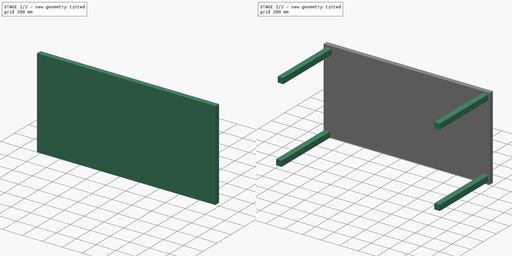
[diagram: build sequence overview — one tinted view per stage of 2, left to right]
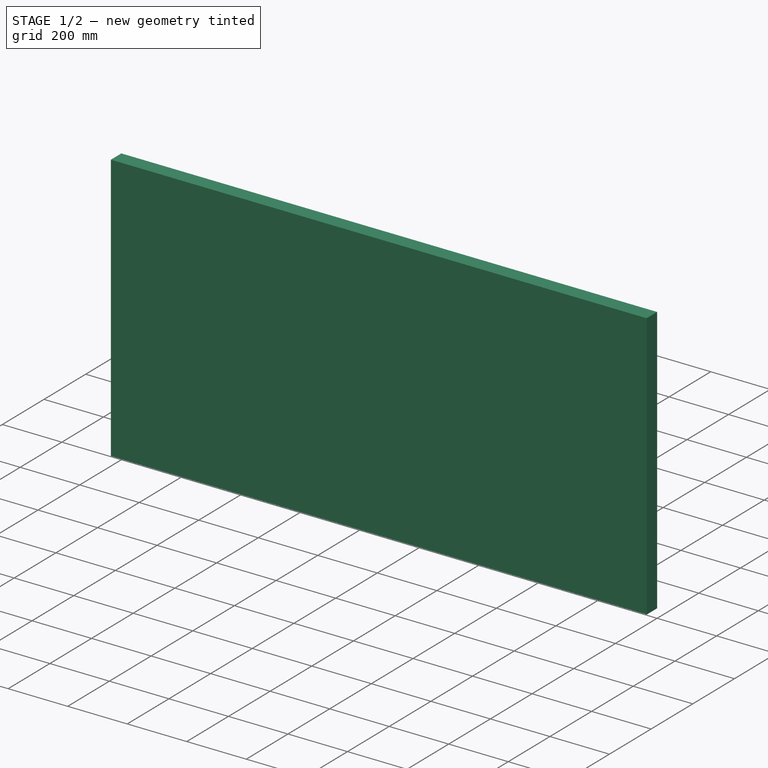
[diagram: stage 1 of 2 — iso view after this stage's code; geometry added in this stage tinted green]
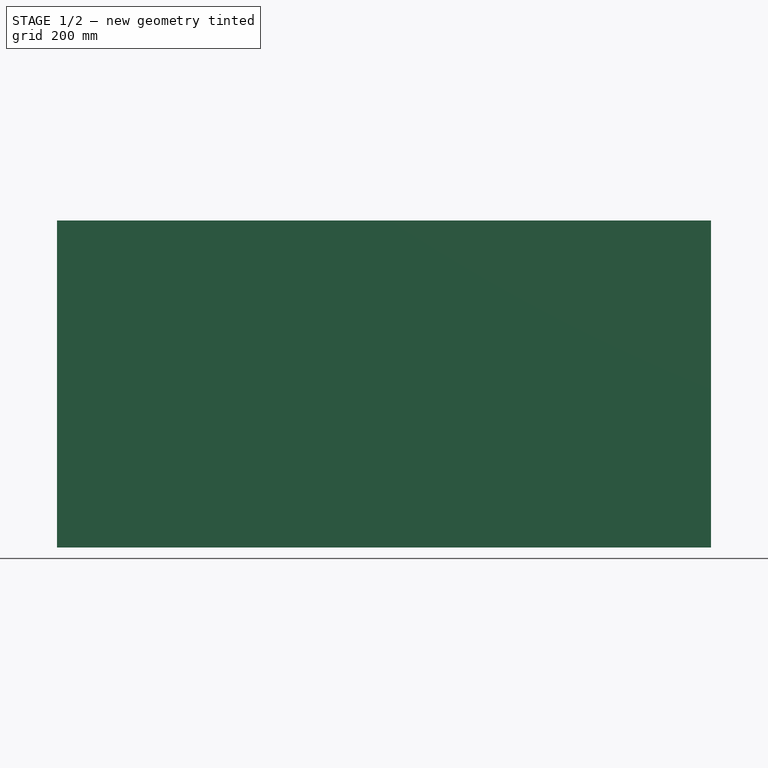
[diagram: stage 1 of 2 — front view after this stage's code; geometry added in this stage tinted green]
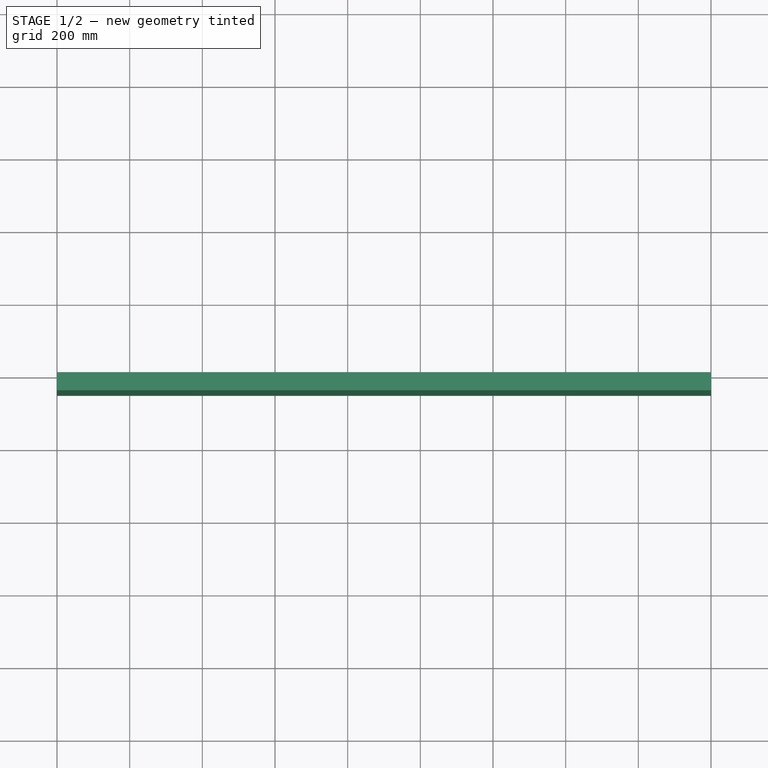
[diagram: stage 1 of 2 — top view after this stage's code; geometry added in this stage tinted green]
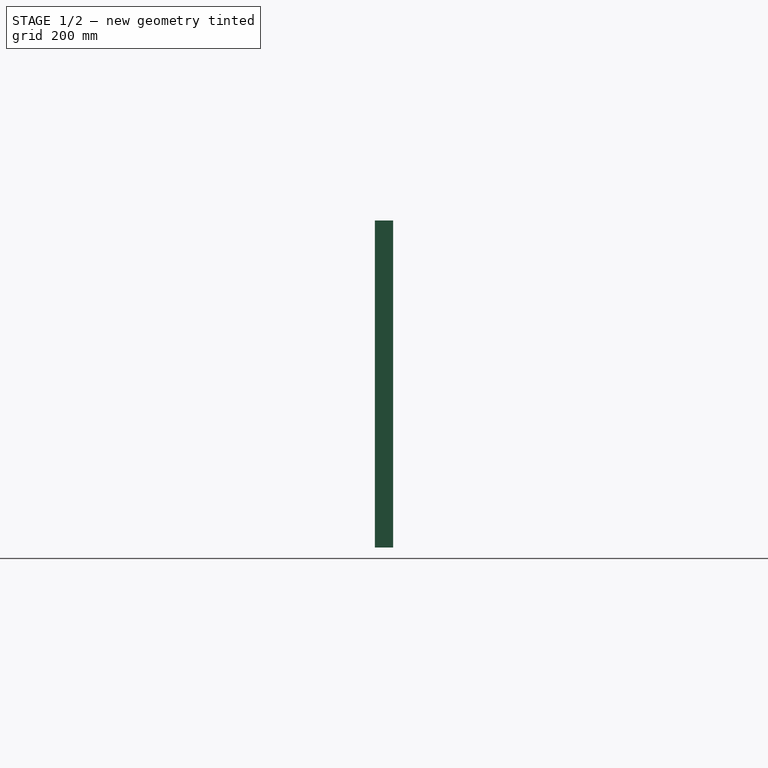
[diagram: stage 1 of 2 — right view after this stage's code; geometry added in this stage tinted green]
FCSTD DOCUMENT  (FreeCAD 1.0R39319 (Git))
Label: dining-table-6-seater
License: All rights reserved
LicenseURL: https://en.wikipedia.org/wiki/All_rights_reserved
objects: Sketcher::SketchObject×2, PartDesign::Pad×2, PartDesign::Body×1
note: 11 computed .brp shape members not serialized (recipe doc carries the construction recipe); baked Part::Feature solids carry a one-line shape summary decoded from their .brp

FEATURE [Sketcher::SketchObject] Sketch
  ArcFitTolerance = 1e-06
  AttachmentSupport = -> [XZ_Plane]
  FullyConstrained = true
  MakeInternals = false
  MapMode = 5
  Placement = pos=(0,0,0) rot=(1,0,0;1.5708rad)
  sketch-geometry (4):
    g0: LineSegment StartX=0 StartY=0 StartZ=0 EndX=1800 EndY=0 EndZ=0
    g1: LineSegment StartX=1800 StartY=0 StartZ=0 EndX=1800 EndY=900 EndZ=0
    g2: LineSegment StartX=1800 StartY=900 StartZ=0 EndX=0 EndY=900 EndZ=0
    g3: LineSegment StartX=0 StartY=900 StartZ=0 EndX=0 EndY=0 EndZ=0
  constraints (11):
    c: Coincident(g0,g1)
    c: Coincident(g1,g2)
    c: Coincident(g2,g3)
    c: Coincident(g3,g0)
    c: Horizontal(g0)
    c: Horizontal(g2)
    c: Vertical(g1)
    c: Vertical(g3)
    c: Distance(g1,g3) = 1800
    c: Distance(g0,g2) = 900
    c: Coincident(g0,g-1)
FEATURE [PartDesign::Pad] Pad
  Direction = (0,-1,2e-16)
  Length = 50
  Length2 = 10
  Placement = pos=(0,0,0) rot=(1,0,0;1.5708rad)
  Profile = -> Sketch
  ReferenceAxis = -> Sketch [N_Axis]
  Refine = true
  Suppressed = false
  Type = 0
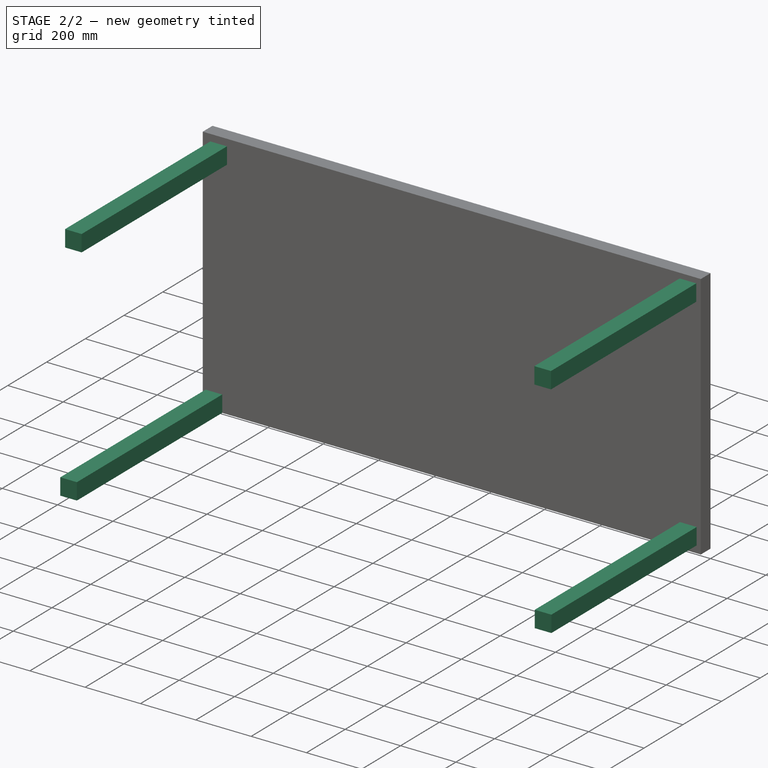
[diagram: stage 2 of 2 — iso view after this stage's code; geometry added in this stage tinted green]
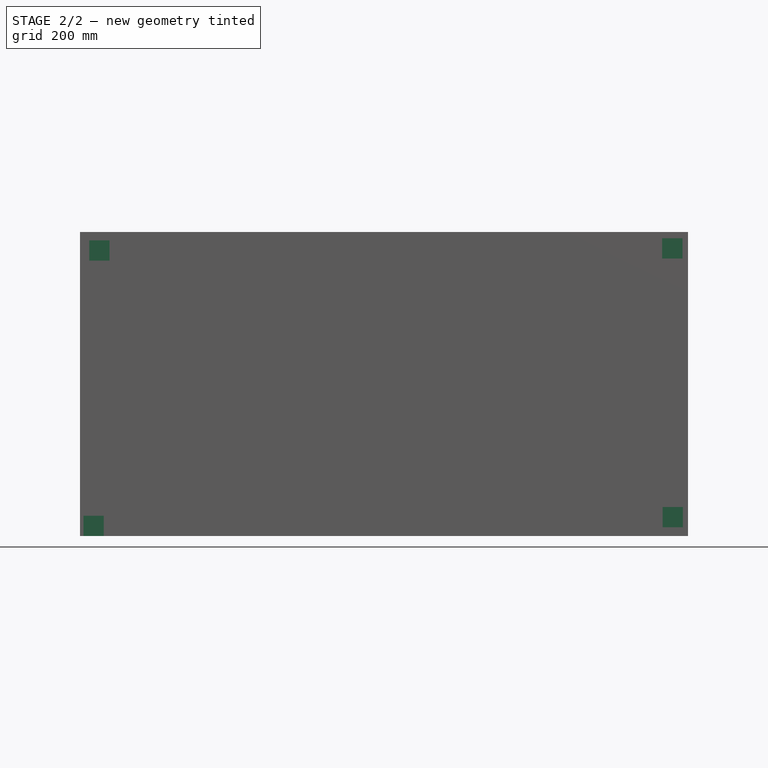
[diagram: stage 2 of 2 — front view after this stage's code; geometry added in this stage tinted green]
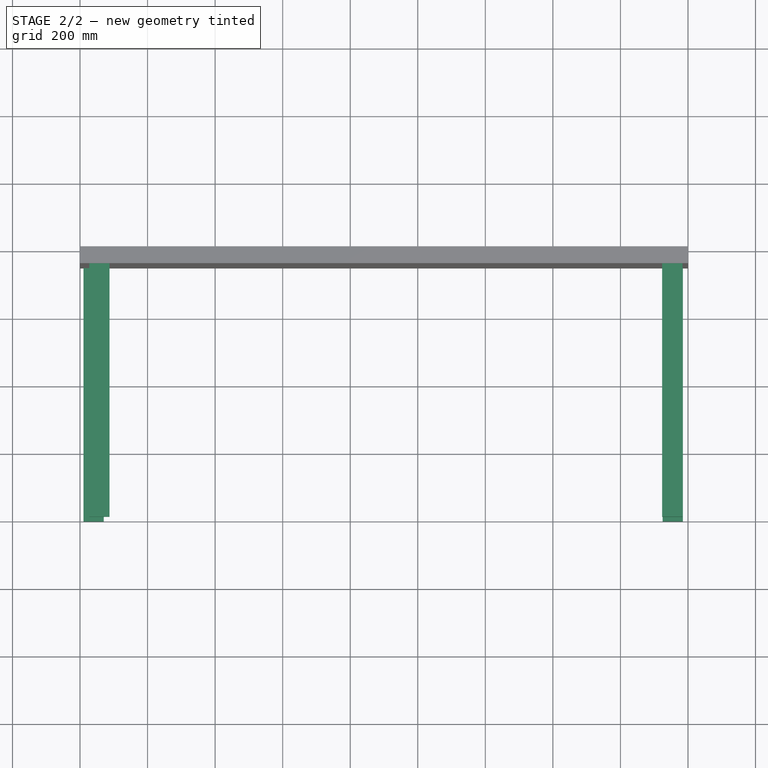
[diagram: stage 2 of 2 — top view after this stage's code; geometry added in this stage tinted green]
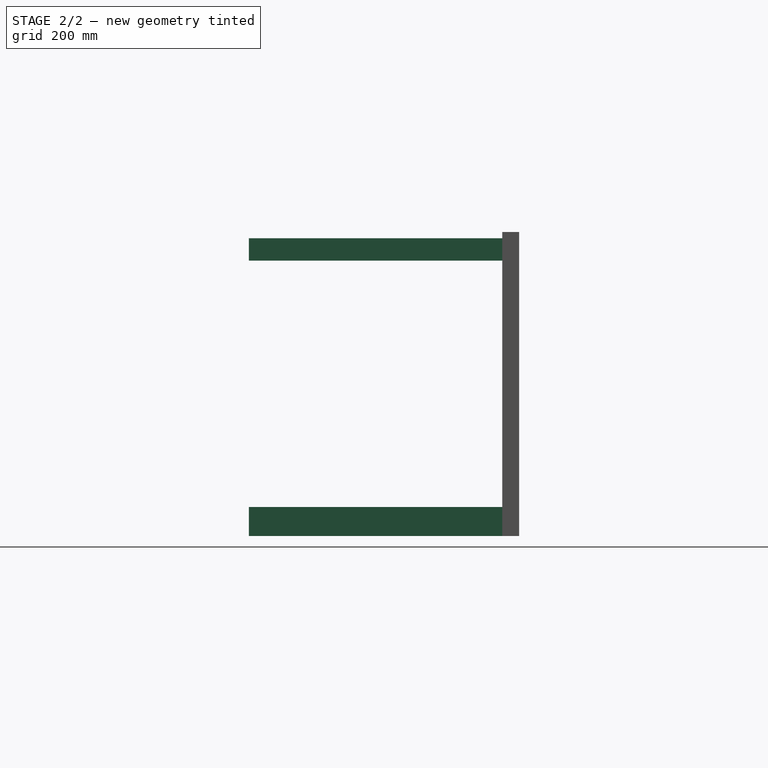
[diagram: stage 2 of 2 — right view after this stage's code; geometry added in this stage tinted green]
FEATURE [Sketcher::SketchObject] Sketch001
  ArcFitTolerance = 1e-06
  AttachmentSupport = -> [Pad]
  FullyConstrained = false
  MakeInternals = false
  MapMode = 5
  Placement = pos=(0,-50,0) rot=(1,0,0;1.5708rad)
  sketch-geometry (16):
    g0: LineSegment StartX=1785.02 StartY=25.8702 StartZ=0 EndX=1785.02 EndY=85.8702 EndZ=0
    g1: LineSegment StartX=1785.02 StartY=85.8702 StartZ=0 EndX=1725.02 EndY=85.8702 EndZ=0
    g2: LineSegment StartX=1725.02 StartY=85.8702 StartZ=0 EndX=1725.02 EndY=25.8702 EndZ=0
    g3: LineSegment StartX=1725.02 StartY=25.8702 StartZ=0 EndX=1785.02 EndY=25.8702 EndZ=0
    g4: LineSegment StartX=1783.63 StartY=881.471 StartZ=0 EndX=1723.63 EndY=881.471 EndZ=0
    g5: LineSegment StartX=1723.63 StartY=881.471 StartZ=0 EndX=1723.63 EndY=821.471 EndZ=0
    g6: LineSegment StartX=1723.63 StartY=821.471 StartZ=0 EndX=1783.63 EndY=821.471 EndZ=0
    g7: LineSegment StartX=1783.63 StartY=821.471 StartZ=0 EndX=1783.63 EndY=881.471 EndZ=0
    g8: LineSegment StartX=70.0929 StartY=60 StartZ=0 EndX=10.0929 EndY=60 EndZ=0
    g9: LineSegment StartX=10.0929 StartY=60 StartZ=0 EndX=10.0929 EndY=0 EndZ=0
    g10: LineSegment StartX=10.0929 StartY=0 StartZ=0 EndX=70.0929 EndY=0 EndZ=0
    g11: LineSegment StartX=70.0929 StartY=0 StartZ=0 EndX=70.0929 EndY=60 EndZ=0
    g12: LineSegment StartX=27.3244 StartY=875.379 StartZ=0 EndX=27.3244 EndY=815.379 EndZ=0
    g13: LineSegment StartX=27.3244 StartY=815.379 StartZ=0 EndX=87.3244 EndY=815.379 EndZ=0
    g14: LineSegment StartX=87.3244 StartY=815.379 StartZ=0 EndX=87.3244 EndY=875.379 EndZ=0
    g15: LineSegment StartX=87.3244 StartY=875.379 StartZ=0 EndX=27.3244 EndY=875.379 EndZ=0
  constraints (41):
    c: Coincident(g0,g1)
    c: Coincident(g1,g2)
    c: Coincident(g2,g3)
    c: Coincident(g3,g0)
    c: Vertical(g0)
    c: Vertical(g2)
    c: Horizontal(g1)
    c: Horizontal(g3)
    c: Distance(g0,g2) = 60
    c: Distance(g1,g3) = 60
    c: Coincident(g4,g5)
    c: Coincident(g5,g6)
    c: Coincident(g6,g7)
    c: Coincident(g7,g4)
    c: Horizontal(g4)
    c: Horizontal(g6)
    c: Vertical(g5)
    c: Vertical(g7)
    c: Distance(g5,g7) = 60
    c: Distance(g4,g6) = 60
    c: Coincident(g8,g9)
    c: Coincident(g9,g10)
    c: Coincident(g10,g11)
    c: Coincident(g11,g8)
    c: Horizontal(g8)
    c: Horizontal(g10)
    c: Vertical(g9)
    c: Vertical(g11)
    c: Distance(g9,g11) = 60
    c: Distance(g8,g10) = 60
    c: PointOnObject(g9,g-1)
    c: Coincident(g12,g13)
    c: Coincident(g13,g14)
    c: Coincident(g14,g15)
    c: Coincident(g15,g12)
    c: Vertical(g12)
    c: Vertical(g14)
    c: Horizontal(g13)
    c: Horizontal(g15)
    c: Distance(g12,g14) = 60
    c: Distance(g13,g15) = 60
FEATURE [PartDesign::Pad] Pad001
  BaseFeature = -> Pad
  Direction = (0,-1,2e-16)
  Length = 750
  Length2 = 10
  Placement = pos=(0,0,0) rot=(1,0,0;1.5708rad)
  Profile = -> Sketch001
  ReferenceAxis = -> Sketch001 [N_Axis]
  Refine = true
  Suppressed = false
  Type = 0
FEATURE [PartDesign::Body] Body
  AllowCompound = false
  Group = -> [Sketch,Pad,Sketch001,Pad001]
  Origin = -> Origin
  Tip = -> Pad001
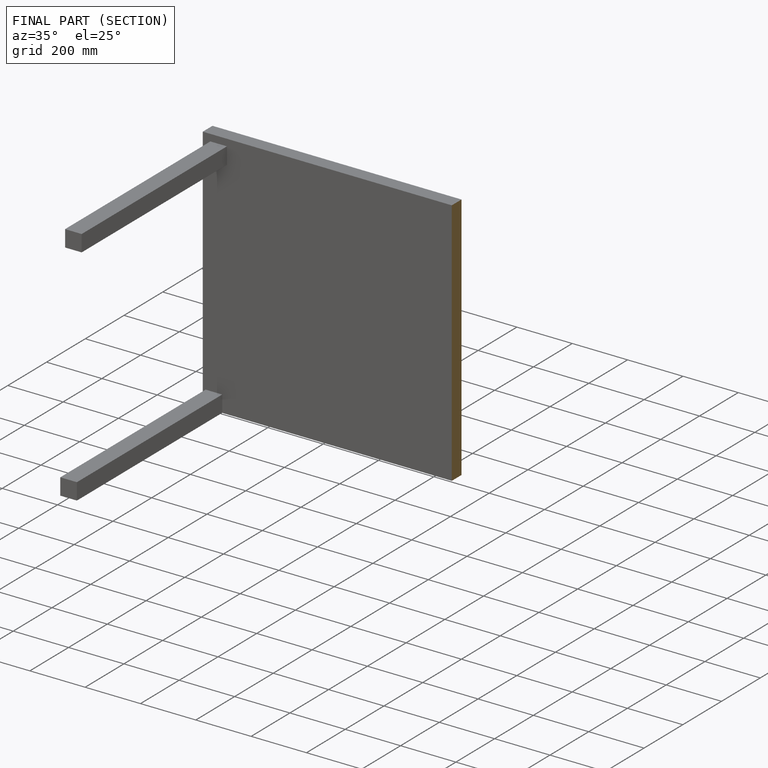
[diagram: finished part — half-section view (interior)]
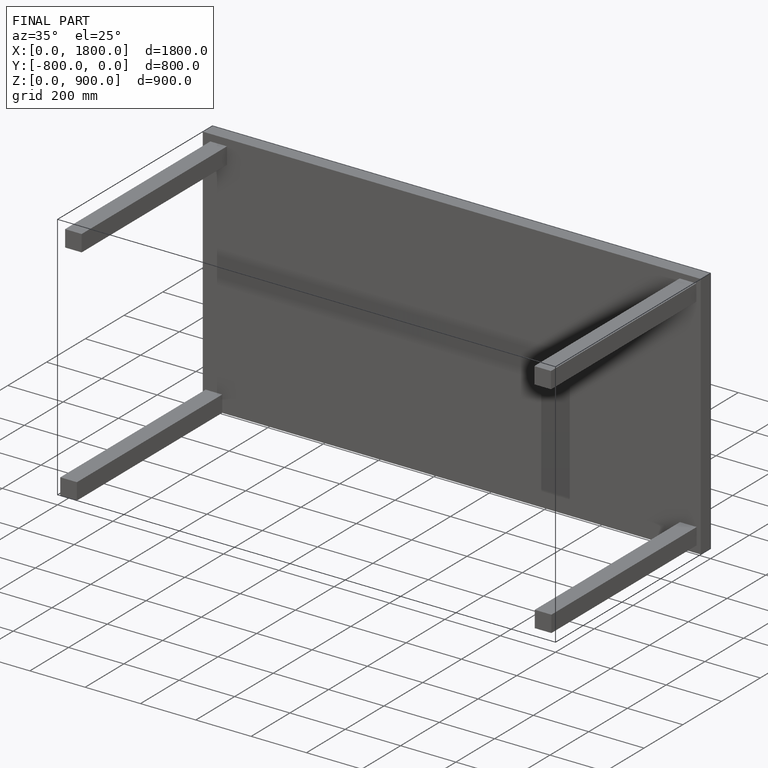
[diagram: finished part — iso view with bounding-box wireframe]
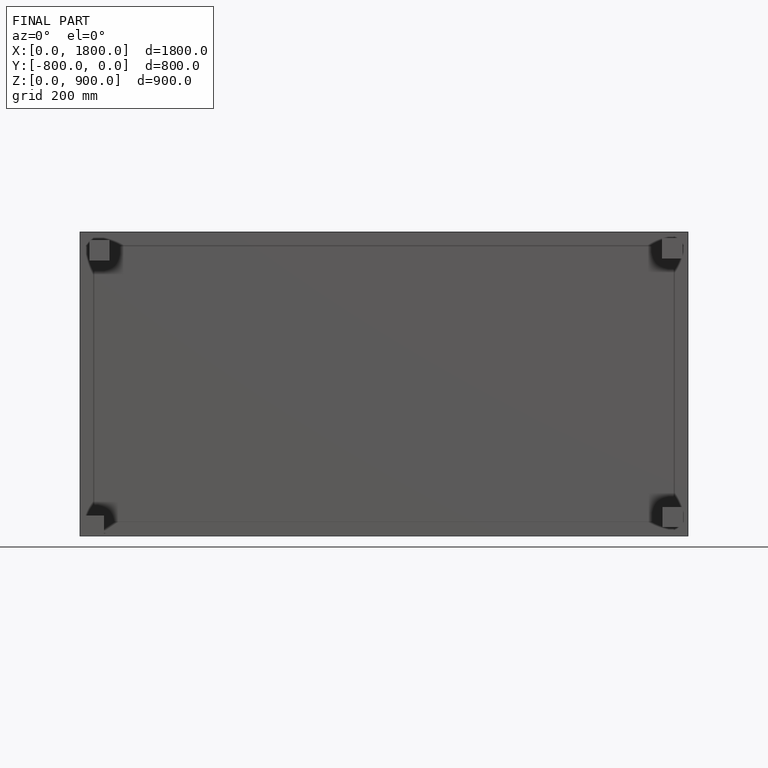
[diagram: finished part — front view with bounding-box wireframe]
